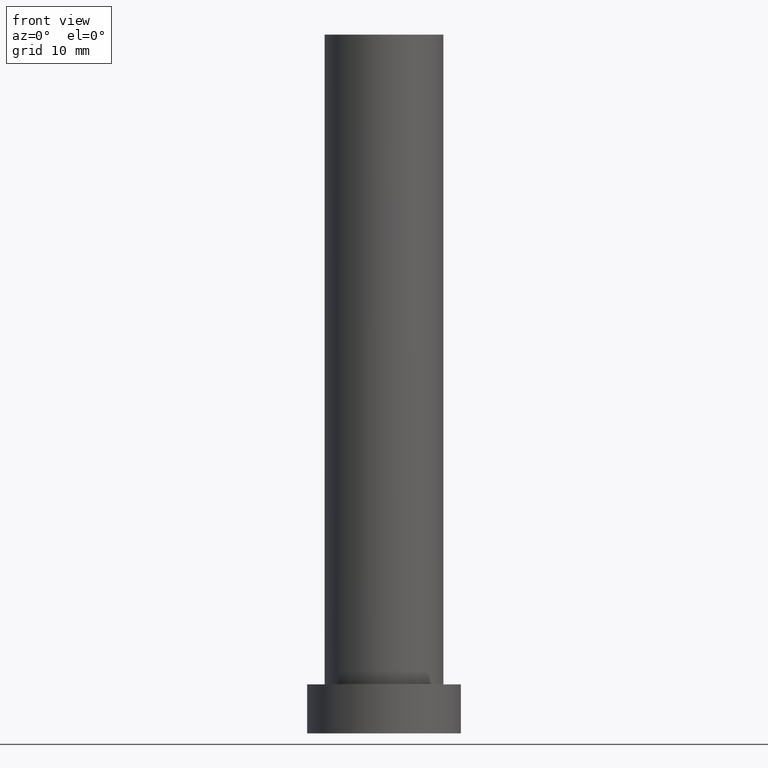
[diagram: clean part render]
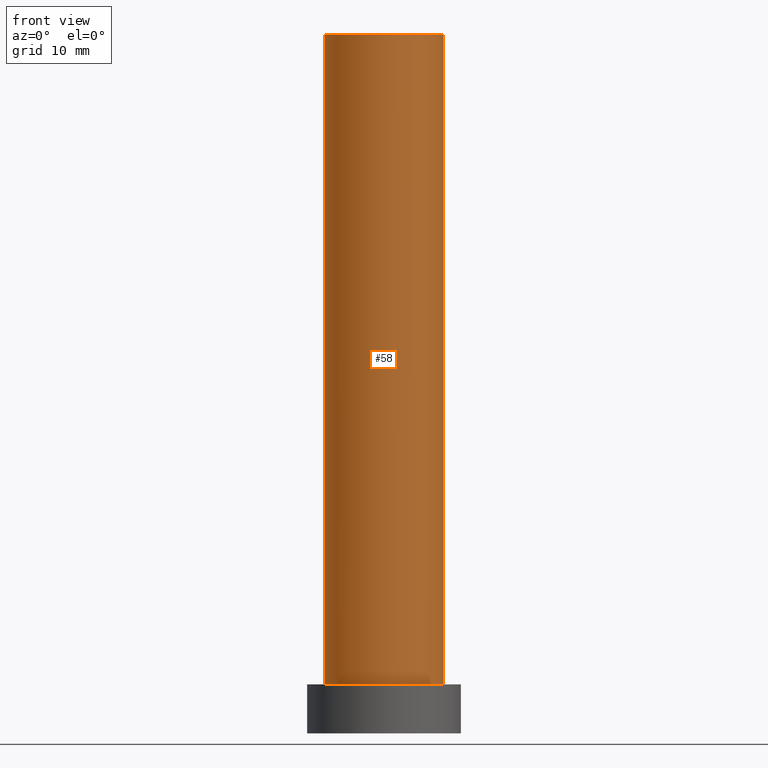
[diagram: same view with one face highlighted and labeled with its STEP entity id]
A machine part, front view. The second image highlights one B-rep face of the part: STEP entity #58.
In plain terms, the highlighted cylindrical surface (partial cylindrical patch) has radius 8.5 mm, axis along (-0, -0, -1).
Its self-contained STEP definition (entity closure, byte-faithful):
#16 = CARTESIAN_POINT ( 'NONE',  ( 0.000000000000000000, 0.000000000000000000, 100.0000000000000000 ) ) ;
#18 = CARTESIAN_POINT ( 'NONE',  ( 0.000000000000000000, 0.000000000000000000, 100.0000000000000000 ) ) ;
#25 = CARTESIAN_POINT ( 'NONE',  ( 0.000000000000000000, 0.000000000000000000, 7.000000000000000000 ) ) ;
#30 = DIRECTION ( 'NONE',  ( 1.000000000000000000, 0.000000000000000000, 0.000000000000000000 ) ) ;
#35 = DIRECTION ( 'NONE',  ( -0.000000000000000000, -0.000000000000000000, -1.000000000000000000 ) ) ;
#45 = EDGE_CURVE ( 'NONE', #181, #132, #252, .T. ) ;
#52 = CARTESIAN_POINT ( 'NONE',  ( -8.500000000000000000, 0.000000000000000000, 100.0000000000000000 ) ) ;
#58 = ADVANCED_FACE ( 'NONE', ( #173 ), #76, .T. ) ;
#66 = DIRECTION ( 'NONE',  ( -0.000000000000000000, -0.000000000000000000, -1.000000000000000000 ) ) ;
#69 = EDGE_LOOP ( 'NONE', ( #224, #192, #129, #244 ) ) ;
#76 = CYLINDRICAL_SURFACE ( 'NONE', #193, 8.500000000000000000 ) ;
#79 = CARTESIAN_POINT ( 'NONE',  ( 8.500000000000000000, 1.040949779275249943E-15, 100.0000000000000000 ) ) ;
#83 = DIRECTION ( 'NONE',  ( -1.000000000000000000, 0.000000000000000000, 0.000000000000000000 ) ) ;
#107 = DIRECTION ( 'NONE',  ( 1.000000000000000000, 0.000000000000000000, 0.000000000000000000 ) ) ;
#121 = AXIS2_PLACEMENT_3D ( 'NONE', #25, #126, #107 ) ;
#126 = DIRECTION ( 'NONE',  ( 0.000000000000000000, 0.000000000000000000, 1.000000000000000000 ) ) ;
#129 = ORIENTED_EDGE ( 'NONE', *, *, #200, .T. ) ;
#130 = VECTOR ( 'NONE', #196, 1000.000000000000000 ) ;
#132 = VERTEX_POINT ( 'NONE', #185 ) ;
#153 = AXIS2_PLACEMENT_3D ( 'NONE', #16, #234, #30 ) ;
#159 = EDGE_CURVE ( 'NONE', #241, #132, #166, .T. ) ;
#166 = CIRCLE ( 'NONE', #121, 8.500000000000000000 ) ;
#173 = FACE_OUTER_BOUND ( 'NONE', #69, .T. ) ;
#181 = VERTEX_POINT ( 'NONE', #79 ) ;
#185 = CARTESIAN_POINT ( 'NONE',  ( 8.500000000000000000, 1.040949779275249943E-15, 7.000000000000000000 ) ) ;
#192 = ORIENTED_EDGE ( 'NONE', *, *, #251, .F. ) ;
#193 = AXIS2_PLACEMENT_3D ( 'NONE', #18, #66, #83 ) ;
#196 = DIRECTION ( 'NONE',  ( -0.000000000000000000, -0.000000000000000000, -1.000000000000000000 ) ) ;
#200 = EDGE_CURVE ( 'NONE', #205, #241, #215, .T. ) ;
#205 = VERTEX_POINT ( 'NONE', #52 ) ;
#215 = LINE ( 'NONE', #254, #228 ) ;
#224 = ORIENTED_EDGE ( 'NONE', *, *, #45, .F. ) ;
#228 = VECTOR ( 'NONE', #35, 1000.000000000000000 ) ;
#232 = CARTESIAN_POINT ( 'NONE',  ( 8.500000000000000000, 1.040949779275249943E-15, 100.0000000000000000 ) ) ;
#234 = DIRECTION ( 'NONE',  ( 0.000000000000000000, 0.000000000000000000, 1.000000000000000000 ) ) ;
#236 = CARTESIAN_POINT ( 'NONE',  ( -8.500000000000000000, 0.000000000000000000, 7.000000000000000000 ) ) ;
#241 = VERTEX_POINT ( 'NONE', #236 ) ;
#244 = ORIENTED_EDGE ( 'NONE', *, *, #159, .T. ) ;
#251 = EDGE_CURVE ( 'NONE', #205, #181, #255, .T. ) ;
#252 = LINE ( 'NONE', #232, #130 ) ;
#254 = CARTESIAN_POINT ( 'NONE',  ( -8.500000000000000000, 0.000000000000000000, 100.0000000000000000 ) ) ;
#255 = CIRCLE ( 'NONE', #153, 8.500000000000000000 ) ;